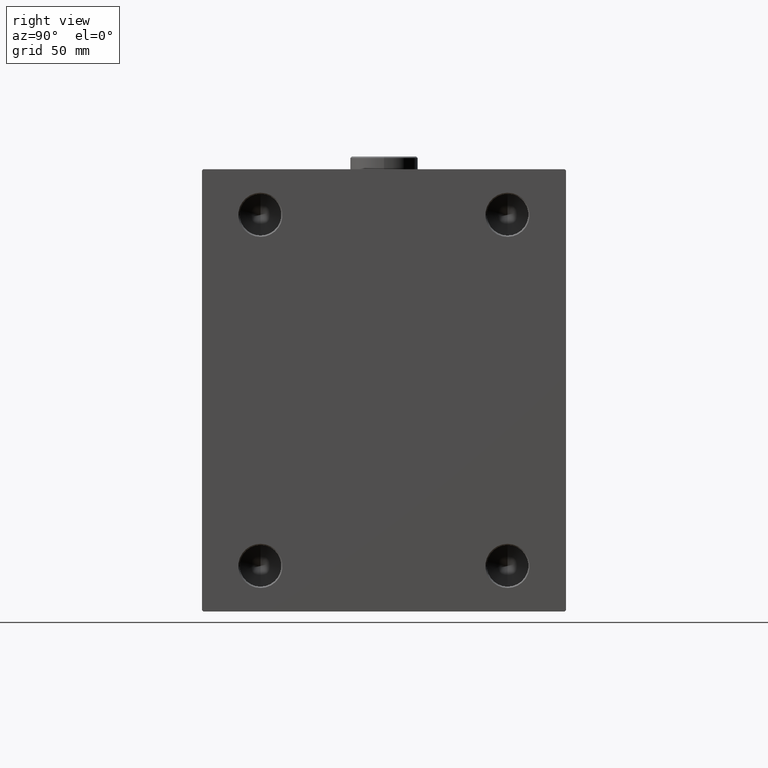
[diagram: clean part render]
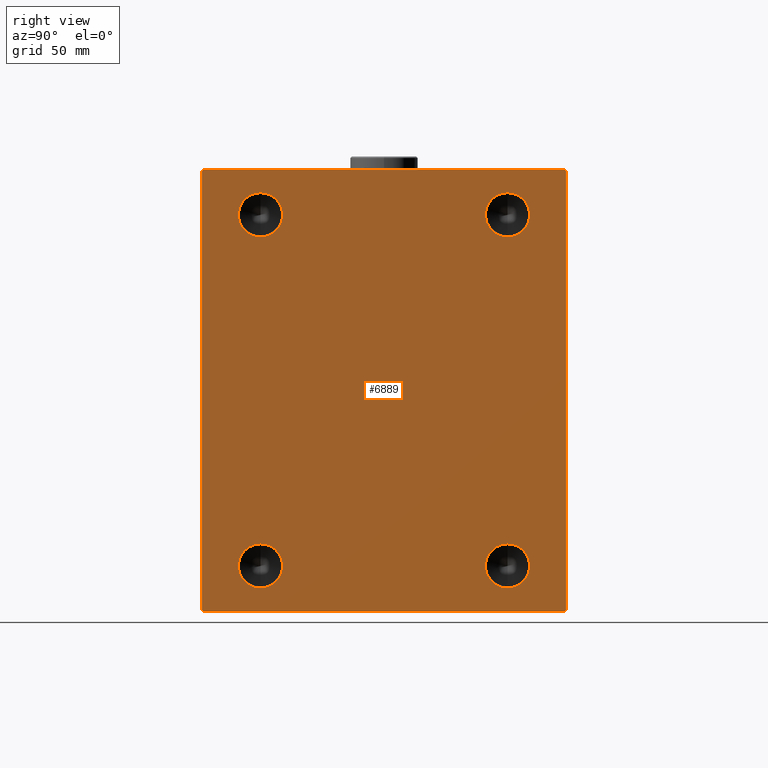
[diagram: same view with one face highlighted and labeled with its STEP entity id]
A machine part, right view. The second image highlights one B-rep face of the part: STEP entity #6889.
In plain terms, the highlighted planar face has unit normal (1, 0, 0).
Its self-contained STEP definition (entity closure, byte-faithful):
#837 = CARTESIAN_POINT ( 'NONE',  ( 155.0000000000000000, 47.50000000000000000, 58.99999999999997158 ) ) ;
#865 = CARTESIAN_POINT ( 'NONE',  ( 155.0000000000000000, -47.50000000000000000, -76.00000000000004263 ) ) ;
#1433 = VECTOR ( 'NONE', #17209, 1000.000000000000000 ) ;
#1636 = EDGE_CURVE ( 'NONE', #31907, #34805, #6988, .T. ) ;
#1721 = EDGE_LOOP ( 'NONE', ( #16762, #7506 ) ) ;
#1828 = CARTESIAN_POINT ( 'NONE',  ( 155.0000000000000000, 47.50000000000000000, -59.00000000000000000 ) ) ;
#1985 = EDGE_CURVE ( 'NONE', #25156, #28844, #17294, .T. ) ;
#2197 = ORIENTED_EDGE ( 'NONE', *, *, #8375, .T. ) ;
#2223 = DIRECTION ( 'NONE',  ( 1.000000000000000000, -0.000000000000000000, -0.000000000000000000 ) ) ;
#2542 = DIRECTION ( 'NONE',  ( 1.000000000000000000, -0.000000000000000000, -0.000000000000000000 ) ) ;
#2829 = ORIENTED_EDGE ( 'NONE', *, *, #36938, .F. ) ;
#3195 = VECTOR ( 'NONE', #16916, 1000.000000000000000 ) ;
#3390 = CARTESIAN_POINT ( 'NONE',  ( 155.0000000000000000, 69.50000000000000000, -85.00000000000000000 ) ) ;
#3405 = VERTEX_POINT ( 'NONE', #17714 ) ;
#3592 = CARTESIAN_POINT ( 'NONE',  ( 155.0000000000000000, -70.00000000000000000, -84.49999999999998579 ) ) ;
#4183 = EDGE_CURVE ( 'NONE', #14995, #30567, #22095, .T. ) ;
#4976 = CARTESIAN_POINT ( 'NONE',  ( 155.0000000000000000, -70.00000000000000000, 84.49999999999998579 ) ) ;
#5095 = AXIS2_PLACEMENT_3D ( 'NONE', #35271, #2542, #16649 ) ;
#5345 = AXIS2_PLACEMENT_3D ( 'NONE', #39963, #29770, #22414 ) ;
#5391 = EDGE_CURVE ( 'NONE', #24895, #25156, #20674, .T. ) ;
#5711 = DIRECTION ( 'NONE',  ( -0.000000000000000000, -0.7071067811865181518, 0.7071067811865769936 ) ) ;
#5848 = FACE_BOUND ( 'NONE', #39810, .T. ) ;
#6121 = AXIS2_PLACEMENT_3D ( 'NONE', #33884, #2223, #30407 ) ;
#6342 = CARTESIAN_POINT ( 'NONE',  ( 155.0000000000000000, -77.24999999999803890, 77.25000000000234479 ) ) ;
#6483 = ORIENTED_EDGE ( 'NONE', *, *, #31831, .F. ) ;
#6524 = ORIENTED_EDGE ( 'NONE', *, *, #29480, .T. ) ;
#6889 = ADVANCED_FACE ( 'NONE', ( #40974, #37500, #5848, #45504, #16480 ), #13016, .T. ) ;
#6988 = LINE ( 'NONE', #14157, #33792 ) ;
#7506 = ORIENTED_EDGE ( 'NONE', *, *, #36000, .F. ) ;
#7595 = VECTOR ( 'NONE', #26151, 999.9999999999998863 ) ;
#8155 = DIRECTION ( 'NONE',  ( 0.000000000000000000, 0.000000000000000000, -1.000000000000000000 ) ) ;
#8339 = ORIENTED_EDGE ( 'NONE', *, *, #10233, .T. ) ;
#8375 = EDGE_CURVE ( 'NONE', #34805, #27336, #16119, .T. ) ;
#8599 = CARTESIAN_POINT ( 'NONE',  ( 155.0000000000000000, 77.24999999999904787, -77.25000000000119371 ) ) ;
#9112 = VERTEX_POINT ( 'NONE', #1828 ) ;
#9899 = ORIENTED_EDGE ( 'NONE', *, *, #39094, .T. ) ;
#9901 = EDGE_CURVE ( 'NONE', #19530, #9112, #37144, .T. ) ;
#10233 = EDGE_CURVE ( 'NONE', #3405, #30113, #41185, .T. ) ;
#10462 = CIRCLE ( 'NONE', #27451, 8.500000000000007105 ) ;
#11723 = VECTOR ( 'NONE', #26283, 1000.000000000000000 ) ;
#11790 = CIRCLE ( 'NONE', #37607, 8.500000000000007105 ) ;
#11945 = VERTEX_POINT ( 'NONE', #837 ) ;
#12045 = CARTESIAN_POINT ( 'NONE',  ( 155.0000000000000000, -69.49999999999997158, 84.99999999999998579 ) ) ;
#12365 = ORIENTED_EDGE ( 'NONE', *, *, #4183, .F. ) ;
#12999 = CARTESIAN_POINT ( 'NONE',  ( 155.0000000000000000, -47.50000000000000000, -67.50000000000001421 ) ) ;
#13016 = PLANE ( 'NONE',  #43433 ) ;
#13052 = DIRECTION ( 'NONE',  ( 0.000000000000000000, 0.000000000000000000, -1.000000000000000000 ) ) ;
#13344 = CIRCLE ( 'NONE', #29537, 8.500000000000007105 ) ;
#13937 = CARTESIAN_POINT ( 'NONE',  ( 155.0000000000000000, -47.50000000000000000, 58.99999999999997158 ) ) ;
#14157 = CARTESIAN_POINT ( 'NONE',  ( 155.0000000000000000, 70.00000000000001421, -85.00000000000000000 ) ) ;
#14995 = VERTEX_POINT ( 'NONE', #13937 ) ;
#15450 = DIRECTION ( 'NONE',  ( -0.000000000000000000, 0.7071067811865376918, -0.7071067811865574537 ) ) ;
#15587 = VERTEX_POINT ( 'NONE', #865 ) ;
#16119 = LINE ( 'NONE', #23275, #40560 ) ;
#16480 = FACE_OUTER_BOUND ( 'NONE', #25512, .T. ) ;
#16649 = DIRECTION ( 'NONE',  ( 0.000000000000000000, 0.000000000000000000, -1.000000000000000000 ) ) ;
#16762 = ORIENTED_EDGE ( 'NONE', *, *, #41498, .F. ) ;
#16916 = DIRECTION ( 'NONE',  ( 0.000000000000000000, 1.000000000000000000, 0.000000000000000000 ) ) ;
#17061 = VECTOR ( 'NONE', #15450, 999.9999999999998863 ) ;
#17072 = DIRECTION ( 'NONE',  ( 0.000000000000000000, 0.000000000000000000, -1.000000000000000000 ) ) ;
#17209 = DIRECTION ( 'NONE',  ( 0.000000000000000000, -0.7071067811865672237, -0.7071067811865279218 ) ) ;
#17243 = AXIS2_PLACEMENT_3D ( 'NONE', #45378, #44700, #13052 ) ;
#17294 = LINE ( 'NONE', #31150, #23480 ) ;
#17714 = CARTESIAN_POINT ( 'NONE',  ( 155.0000000000000000, -69.50000000000000000, -85.00000000000000000 ) ) ;
#18149 = EDGE_LOOP ( 'NONE', ( #6483, #12365 ) ) ;
#18397 = ORIENTED_EDGE ( 'NONE', *, *, #44199, .F. ) ;
#18948 = DIRECTION ( 'NONE',  ( 1.000000000000000000, -0.000000000000000000, -0.000000000000000000 ) ) ;
#19530 = VERTEX_POINT ( 'NONE', #29557 ) ;
#20648 = DIRECTION ( 'NONE',  ( 0.000000000000000000, -8.163404592832031500E-17, 1.000000000000000000 ) ) ;
#20674 = LINE ( 'NONE', #6342, #1433 ) ;
#21735 = CARTESIAN_POINT ( 'NONE',  ( 155.0000000000000000, -47.50000000000000000, 67.49999999999998579 ) ) ;
#21777 = CARTESIAN_POINT ( 'NONE',  ( 155.0000000000000000, -47.50000000000000000, 76.00000000000001421 ) ) ;
#22038 = ORIENTED_EDGE ( 'NONE', *, *, #44802, .T. ) ;
#22095 = CIRCLE ( 'NONE', #5095, 8.500000000000007105 ) ;
#22414 = DIRECTION ( 'NONE',  ( 0.000000000000000000, 0.000000000000000000, -1.000000000000000000 ) ) ;
#22429 = DIRECTION ( 'NONE',  ( 0.000000000000000000, 0.000000000000000000, -1.000000000000000000 ) ) ;
#22894 = CARTESIAN_POINT ( 'NONE',  ( 155.0000000000000000, 47.50000000000000000, 76.00000000000001421 ) ) ;
#23275 = CARTESIAN_POINT ( 'NONE',  ( 155.0000000000000000, 77.25000000000289901, 77.24999999999647571 ) ) ;
#23480 = VECTOR ( 'NONE', #17072, 1000.000000000000000 ) ;
#24036 = ORIENTED_EDGE ( 'NONE', *, *, #1636, .T. ) ;
#24895 = VERTEX_POINT ( 'NONE', #12045 ) ;
#24941 = DIRECTION ( 'NONE',  ( 1.000000000000000000, -0.000000000000000000, -0.000000000000000000 ) ) ;
#25156 = VERTEX_POINT ( 'NONE', #4976 ) ;
#25163 = DIRECTION ( 'NONE',  ( 0.000000000000000000, 0.000000000000000000, -1.000000000000000000 ) ) ;
#25321 = ORIENTED_EDGE ( 'NONE', *, *, #9901, .F. ) ;
#25512 = EDGE_LOOP ( 'NONE', ( #6524, #29478, #25969, #9899, #8339, #22038, #24036, #2197 ) ) ;
#25708 = CARTESIAN_POINT ( 'NONE',  ( 155.0000000000000000, 47.50000000000000000, 67.49999999999998579 ) ) ;
#25840 = LINE ( 'NONE', #32994, #11723 ) ;
#25969 = ORIENTED_EDGE ( 'NONE', *, *, #1985, .T. ) ;
#26151 = DIRECTION ( 'NONE',  ( -0.000000000000000000, 0.7071067811865574537, 0.7071067811865376918 ) ) ;
#26245 = VERTEX_POINT ( 'NONE', #33064 ) ;
#26283 = DIRECTION ( 'NONE',  ( 0.000000000000000000, -1.000000000000000000, -1.982541115402065110E-16 ) ) ;
#26329 = CARTESIAN_POINT ( 'NONE',  ( 155.0000000000000000, 70.00000000000001421, -84.50000000000000000 ) ) ;
#26852 = DIRECTION ( 'NONE',  ( 1.000000000000000000, -0.000000000000000000, -0.000000000000000000 ) ) ;
#27302 = CARTESIAN_POINT ( 'NONE',  ( 155.0000000000000000, 69.50000000000000000, 85.00000000000001421 ) ) ;
#27336 = VERTEX_POINT ( 'NONE', #27302 ) ;
#27415 = CIRCLE ( 'NONE', #45128, 8.500000000000007105 ) ;
#27451 = AXIS2_PLACEMENT_3D ( 'NONE', #38803, #24941, #35568 ) ;
#28197 = CIRCLE ( 'NONE', #5345, 8.500000000000007105 ) ;
#28844 = VERTEX_POINT ( 'NONE', #3592 ) ;
#29478 = ORIENTED_EDGE ( 'NONE', *, *, #5391, .T. ) ;
#29480 = EDGE_CURVE ( 'NONE', #27336, #24895, #25840, .T. ) ;
#29537 = AXIS2_PLACEMENT_3D ( 'NONE', #12999, #26852, #34019 ) ;
#29557 = CARTESIAN_POINT ( 'NONE',  ( 155.0000000000000000, 47.50000000000000000, -76.00000000000004263 ) ) ;
#29770 = DIRECTION ( 'NONE',  ( 1.000000000000000000, -0.000000000000000000, -0.000000000000000000 ) ) ;
#30113 = VERTEX_POINT ( 'NONE', #3390 ) ;
#30407 = DIRECTION ( 'NONE',  ( 0.000000000000000000, 0.000000000000000000, -1.000000000000000000 ) ) ;
#30538 = CARTESIAN_POINT ( 'NONE',  ( 155.0000000000000000, -70.00000000000000000, -85.00000000000000000 ) ) ;
#30567 = VERTEX_POINT ( 'NONE', #21777 ) ;
#31150 = CARTESIAN_POINT ( 'NONE',  ( 155.0000000000000000, -70.00000000000000000, 84.99999999999998579 ) ) ;
#31831 = EDGE_CURVE ( 'NONE', #30567, #14995, #11790, .T. ) ;
#31907 = VERTEX_POINT ( 'NONE', #26329 ) ;
#32994 = CARTESIAN_POINT ( 'NONE',  ( 155.0000000000000000, 70.00000000000000000, 85.00000000000001421 ) ) ;
#33064 = CARTESIAN_POINT ( 'NONE',  ( 155.0000000000000000, -47.50000000000000000, -59.00000000000000000 ) ) ;
#33792 = VECTOR ( 'NONE', #20648, 1000.000000000000000 ) ;
#33884 = CARTESIAN_POINT ( 'NONE',  ( 155.0000000000000000, 47.50000000000000000, -67.50000000000001421 ) ) ;
#34019 = DIRECTION ( 'NONE',  ( 0.000000000000000000, 0.000000000000000000, -1.000000000000000000 ) ) ;
#34152 = CIRCLE ( 'NONE', #6121, 8.500000000000007105 ) ;
#34805 = VERTEX_POINT ( 'NONE', #42658 ) ;
#35271 = CARTESIAN_POINT ( 'NONE',  ( 155.0000000000000000, -47.50000000000000000, 67.49999999999998579 ) ) ;
#35559 = DIRECTION ( 'NONE',  ( 1.000000000000000000, 0.000000000000000000, 0.000000000000000000 ) ) ;
#35568 = DIRECTION ( 'NONE',  ( 0.000000000000000000, 0.000000000000000000, -1.000000000000000000 ) ) ;
#36000 = EDGE_CURVE ( 'NONE', #11945, #38847, #27415, .T. ) ;
#36548 = LINE ( 'NONE', #8599, #7595 ) ;
#36938 = EDGE_CURVE ( 'NONE', #15587, #26245, #13344, .T. ) ;
#37144 = CIRCLE ( 'NONE', #17243, 8.500000000000007105 ) ;
#37500 = FACE_BOUND ( 'NONE', #18149, .T. ) ;
#37607 = AXIS2_PLACEMENT_3D ( 'NONE', #21735, #18948, #22429 ) ;
#38113 = LINE ( 'NONE', #43185, #17061 ) ;
#38792 = CARTESIAN_POINT ( 'NONE',  ( 155.0000000000000000, 0.000000000000000000, 0.000000000000000000 ) ) ;
#38803 = CARTESIAN_POINT ( 'NONE',  ( 155.0000000000000000, 47.50000000000000000, 67.49999999999998579 ) ) ;
#38847 = VERTEX_POINT ( 'NONE', #22894 ) ;
#39094 = EDGE_CURVE ( 'NONE', #28844, #3405, #38113, .T. ) ;
#39804 = DIRECTION ( 'NONE',  ( 1.000000000000000000, -0.000000000000000000, -0.000000000000000000 ) ) ;
#39810 = EDGE_LOOP ( 'NONE', ( #41035, #2829 ) ) ;
#39963 = CARTESIAN_POINT ( 'NONE',  ( 155.0000000000000000, -47.50000000000000000, -67.50000000000001421 ) ) ;
#40560 = VECTOR ( 'NONE', #5711, 1000.000000000000000 ) ;
#40974 = FACE_BOUND ( 'NONE', #1721, .T. ) ;
#41035 = ORIENTED_EDGE ( 'NONE', *, *, #42549, .F. ) ;
#41185 = LINE ( 'NONE', #30538, #3195 ) ;
#41498 = EDGE_CURVE ( 'NONE', #38847, #11945, #10462, .T. ) ;
#42549 = EDGE_CURVE ( 'NONE', #26245, #15587, #28197, .T. ) ;
#42658 = CARTESIAN_POINT ( 'NONE',  ( 155.0000000000000000, 70.00000000000000000, 84.49999999999997158 ) ) ;
#43185 = CARTESIAN_POINT ( 'NONE',  ( 155.0000000000000000, -77.25000000000098055, -77.24999999999883471 ) ) ;
#43433 = AXIS2_PLACEMENT_3D ( 'NONE', #38792, #35559, #25163 ) ;
#43778 = EDGE_LOOP ( 'NONE', ( #18397, #25321 ) ) ;
#44199 = EDGE_CURVE ( 'NONE', #9112, #19530, #34152, .T. ) ;
#44700 = DIRECTION ( 'NONE',  ( 1.000000000000000000, -0.000000000000000000, -0.000000000000000000 ) ) ;
#44802 = EDGE_CURVE ( 'NONE', #30113, #31907, #36548, .T. ) ;
#45128 = AXIS2_PLACEMENT_3D ( 'NONE', #25708, #39804, #8155 ) ;
#45378 = CARTESIAN_POINT ( 'NONE',  ( 155.0000000000000000, 47.50000000000000000, -67.50000000000001421 ) ) ;
#45504 = FACE_BOUND ( 'NONE', #43778, .T. ) ;